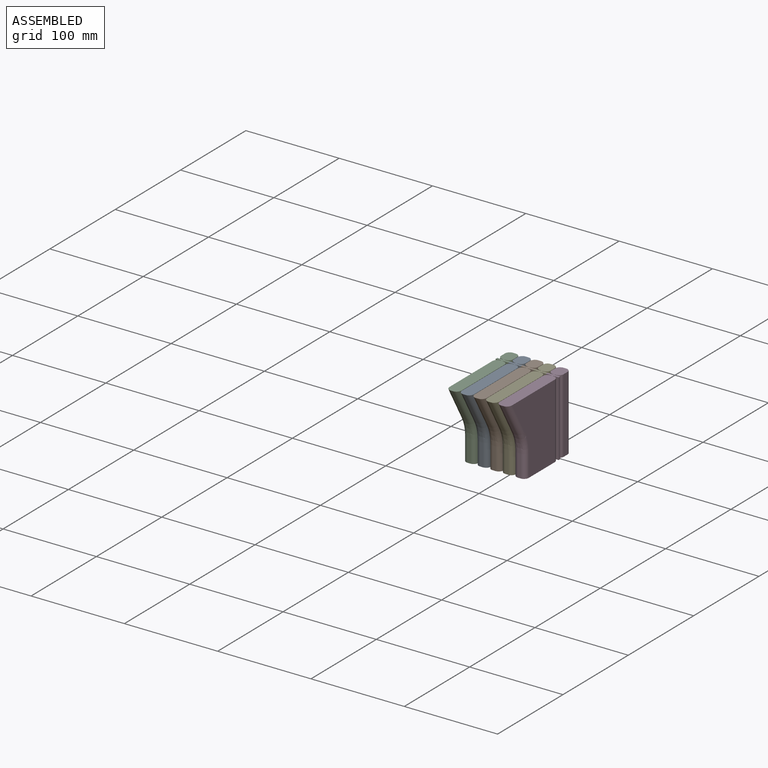
[diagram: assembled view]
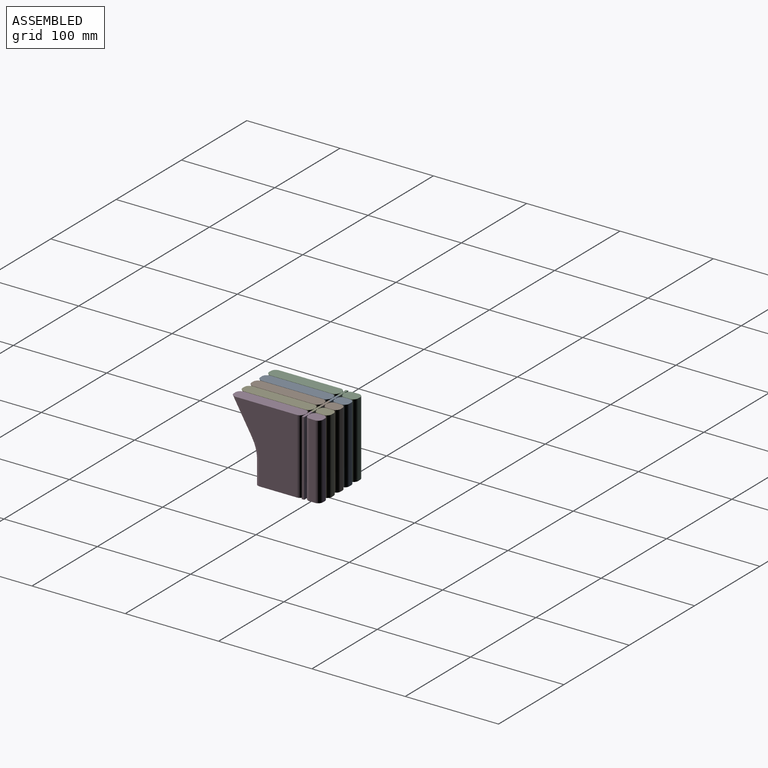
[diagram: assembled view, second angle]
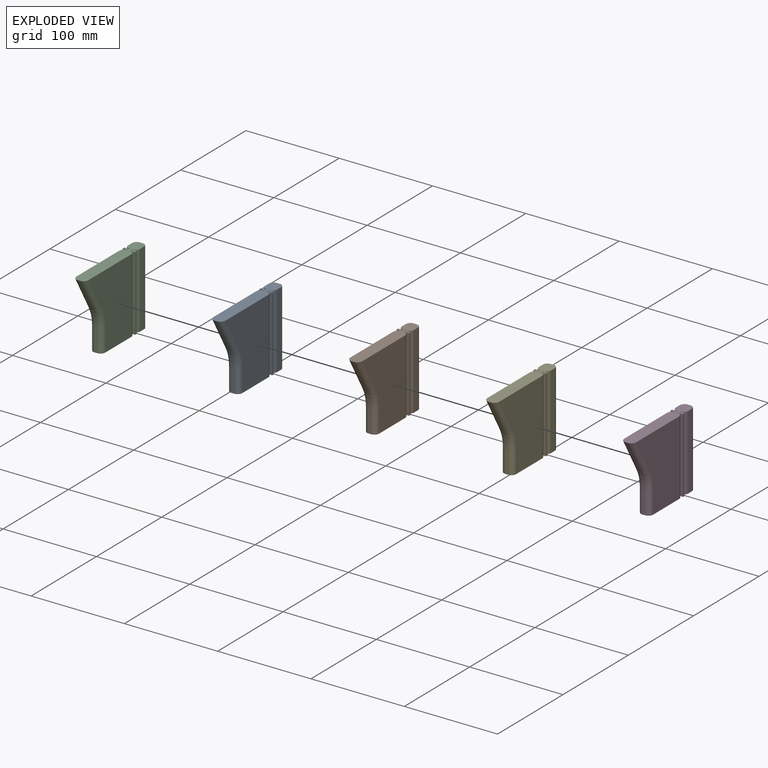
[diagram: exploded view]
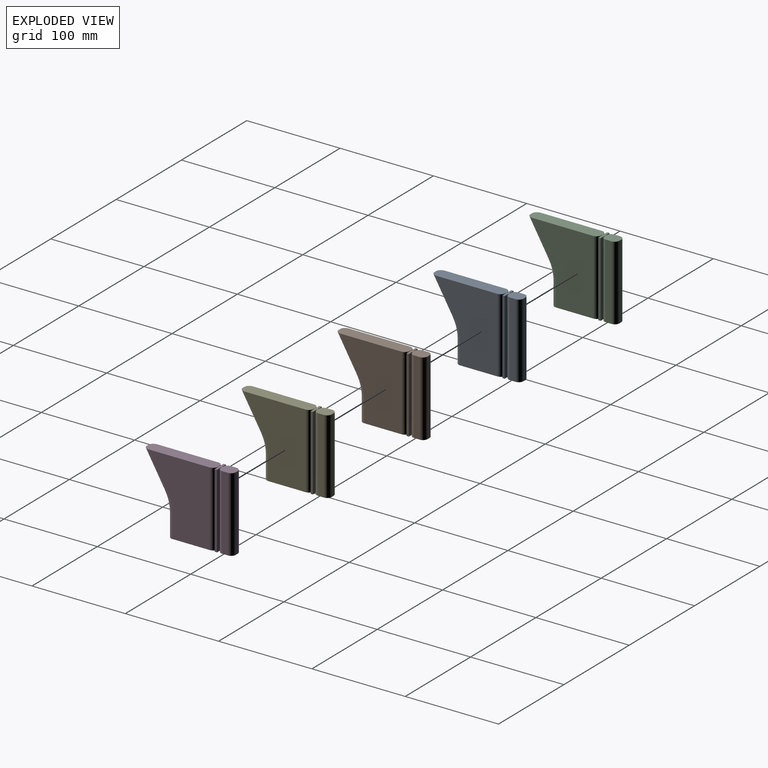
[diagram: exploded view, second angle]
ASSEMBLY  parts=5 mates=4
PART A: 36 faces, bbox 13.5x95.6x82.5 mm
  f0: plane 24.04x3mm, normal (0,-1,0), area 72.1mm2, adj f21,f23,f24,f28
  f1: plane 80x0.75mm, normal (0,-1,0), area 60mm2, adj f2,f20,f21,f30
  f2: plane 80x0.5mm, normal (-1,0,0), area 40mm2, adj f1,f3,f20,f21
  f3: plane 80x6mm, normal (0,1,0), area 480mm2, adj f2,f4,f20,f21
  f4: plane 80x2.5mm, normal (-1,0,0), area 200mm2, adj f3,f5,f20,f21
  f5: plane 80x6mm, normal (0,-1,0), area 480mm2, adj f4,f6,f20,f21
  f6: plane 80x0.5mm, normal (-1,0,0), area 40mm2, adj f5,f7,f20,f21
  f7: plane 80x0.75mm, normal (0,1,0), area 60mm2, adj f6,f20,f21,f34
  f8: plane 80x65.35mm, normal (-1,0,0), area 3768.8mm2, adj f20,f21,f24,f25,f26,f34
  f9: plane 80x65.35mm, normal (1,0,0), area 3768.8mm2, adj f20,f21,f27,f28,f29,f35
  f10: plane 80x0.75mm, normal (0,1,0), area 60mm2, adj f11,f20,f21,f35
  f11: plane 80x0.5mm, normal (1,0,0), area 40mm2, adj f10,f12,f20,f21
  f12: plane 80x6mm, normal (0,-1,0), area 480mm2, adj f11,f13,f20,f21
  f13: plane 80x2.5mm, normal (1,0,0), area 200mm2, adj f12,f14,f20,f21
  f14: plane 80x6mm, normal (0,1,0), area 480mm2, adj f13,f15,f20,f21
  f15: plane 80x0.5mm, normal (1,0,0), area 40mm2, adj f14,f16,f20,f21
  f16: plane 80x0.75mm, normal (0,-1,0), area 60mm2, adj f15,f20,f21,f31
  f17: plane 80x6mm, normal (1,0,0), area 480mm2, adj f20,f21,f31,f32
  f18: plane 80x3mm, normal (0,1,0), area 240mm2, adj f20,f21,f32,f33
  f19: plane 80x6mm, normal (-1,0,0), area 480mm2, adj f20,f21,f30,f33
  f20: plane 95.62x13.5mm, normal (0,0,1), area 1188.2mm2, adj f1,f2,f3,f4,f5,f6,f7,f8
  f21: plane 69.5x13.5mm, normal (0,0,-1), area 850.3mm2, adj f0,f1,f2,f3,f4,f5,f6,f7
  f22: plane 35.96x20.76mm, normal (0,-0.87,-0.5), area 124.6mm2, adj f20,f23,f25,f27
  f23: cylinder r=40mm len=20mm, axis (1,0,0), area 62.8mm2, adj f0,f22,f26,f29
  f24: cylinder r=5mm len=24.04mm, axis (0,0,-1), area 188.8mm2, adj f0,f8,f21,f26
  f25: cylinder r=5mm len=38.46mm, axis (0,0.5,-0.87), area 317.9mm2, adj f8,f20,f22,f26
  f26: torus R=45mm, axis (1,0,0), area 172mm2, adj f8,f23,f24,f25
  f27: cylinder r=5mm len=38.46mm, axis (0,0.5,-0.87), area 317.9mm2, adj f9,f20,f22,f29
  f28: cylinder r=5mm len=24.04mm, axis (0,0,1), area 188.8mm2, adj f0,f9,f21,f29
  f29: torus R=45mm, axis (1,0,0), area 172mm2, adj f9,f23,f27,f28
  f30: cylinder r=5mm len=80mm, axis (0,0,-1), area 628.3mm2, adj f1,f19,f20,f21
  f31: cylinder r=5mm len=80mm, axis (0,0,1), area 628.3mm2, adj f16,f17,f20,f21
  f32: cylinder r=5mm len=80mm, axis (0,0,-1), area 628.3mm2, adj f17,f18,f20,f21
  f33: cylinder r=5mm len=80mm, axis (0,0,1), area 628.3mm2, adj f18,f19,f20,f21
  f34: cylinder r=5mm len=80mm, axis (0,0,1), area 628.3mm2, adj f7,f8,f20,f21
  f35: cylinder r=5mm len=80mm, axis (0,0,-1), area 628.3mm2, adj f9,f10,f20,f21
PART B: same geometry as A
PART C: same geometry as A
PART D: same geometry as A
PART E: same geometry as A
PLACE A t=(66.1,12.19,-57.99)mm
PLACE B t=(79.6,12.19,-57.99)mm
PLACE C t=(52.6,12.19,-57.99)mm
PLACE D t=(106.6,12.19,-57.99)mm
PLACE E t=(93.1,12.19,-57.99)mm
MATE fastened A.f4 <-> C.f13  axis (-1,0,0) through (66.1,-5.56,-17.99)mm
MATE fastened E.f13 <-> D.f4  axis (1,0,0) through (106.6,-5.56,-17.99)mm
MATE fastened B.f13 <-> E.f4  axis (1,0,0) through (93.1,-5.56,-17.99)mm
MATE fastened A.f13 <-> B.f4  axis (1,0,0) through (79.6,-5.56,-17.99)mm
